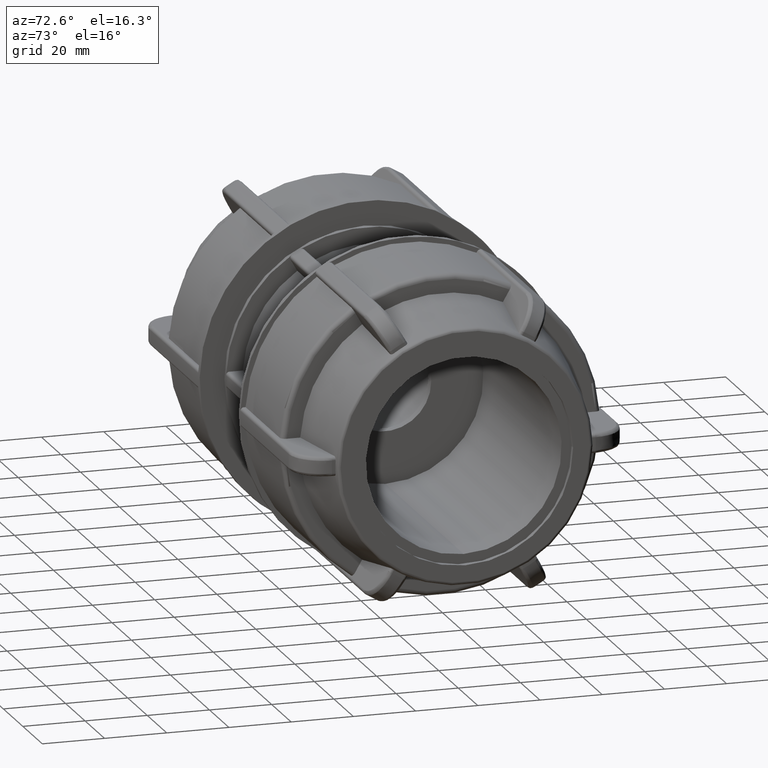
[diagram: clean part render]
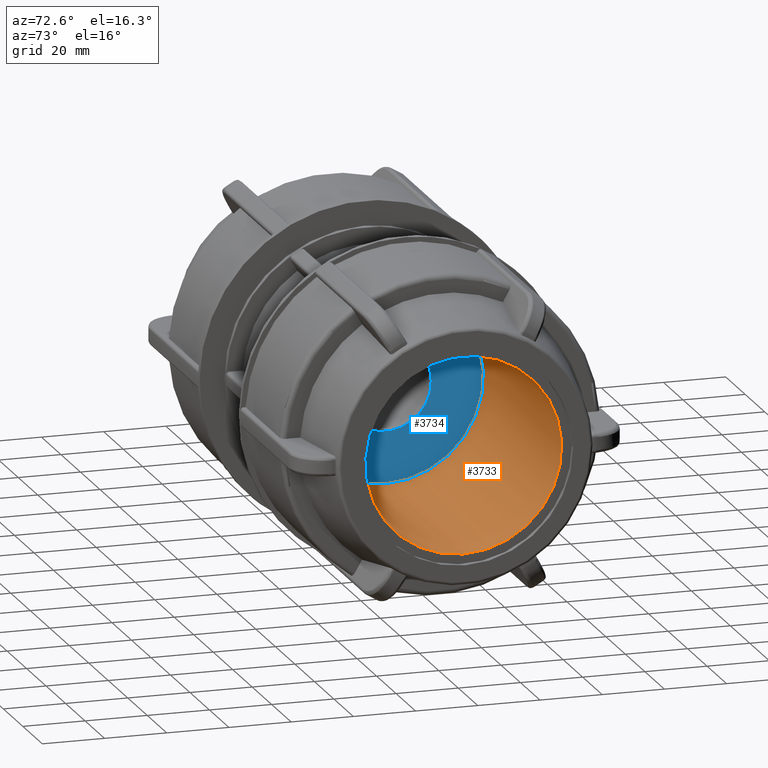
[diagram: same view with the hole feature highlighted: cylindrical wall and planar end face, labeled with their STEP entity ids]
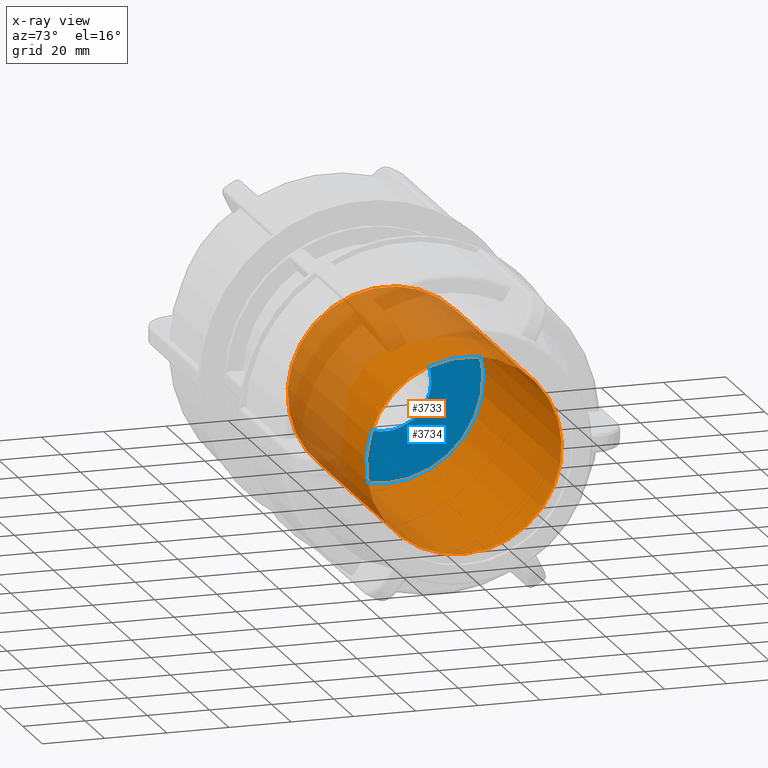
[diagram: x-ray of the same camera — body ghosted, the hole faces saturated]
A machine part, auxiliary view. The highlighted faces form one hole feature of diameter 63 mm: the cylindrical wall (entity #3733, orange) and its adjacent planar end face (entity #3734, blue) — they share a circular edge in the B-rep.
The next image is the same camera in x-ray (body ghosted, the hole faces saturated) — the bore reads through the body.
Wall:
#196=FACE_BOUND('',#587,.T.);
#347=FACE_OUTER_BOUND('',#586,.T.);
#586=EDGE_LOOP('',(#2647));
#587=EDGE_LOOP('',(#2648));
#1299=CIRCLE('',#4018,31.5);
#1300=CIRCLE('',#4019,31.5);
#1558=VERTEX_POINT('',#5706);
#1559=VERTEX_POINT('',#5708);
#1971=EDGE_CURVE('',#1558,#1558,#1299,.T.);
#1972=EDGE_CURVE('',#1559,#1559,#1300,.T.);
#2647=ORIENTED_EDGE('',*,*,#1971,.F.);
#2648=ORIENTED_EDGE('',*,*,#1972,.T.);
#3624=CYLINDRICAL_SURFACE('',#4017,31.5);
#3733=ADVANCED_FACE('',(#347,#196),#3624,.F.);
#4017=AXIS2_PLACEMENT_3D('',#5705,#4613,#4614);
#4018=AXIS2_PLACEMENT_3D('',#5707,#4615,#4616);
#4019=AXIS2_PLACEMENT_3D('',#5709,#4617,#4618);
#4613=DIRECTION('center_axis',(-1.,-3.06161699786838E-16,0.));
#4614=DIRECTION('ref_axis',(0.,0.,1.));
#4615=DIRECTION('center_axis',(-1.,-3.06161699786838E-16,0.));
#4616=DIRECTION('ref_axis',(0.,0.,1.));
#4617=DIRECTION('center_axis',(-1.,-3.06161699786838E-16,0.));
#4618=DIRECTION('ref_axis',(0.,0.,1.));
#5705=CARTESIAN_POINT('Origin',(83.5,2.5564501932201E-14,0.));
#5706=CARTESIAN_POINT('',(81.83,2.11955744762428E-14,-31.5));
#5707=CARTESIAN_POINT('Origin',(81.83,2.5053211893557E-14,0.));
#5708=CARTESIAN_POINT('',(1.5,4.31687996699441E-15,-31.5));
#5709=CARTESIAN_POINT('Origin',(1.5,4.59242549680245E-16,0.));
End face:
#197=FACE_BOUND('',#589,.T.);
#236=PLANE('',#4020);
#348=FACE_OUTER_BOUND('',#588,.T.);
#588=EDGE_LOOP('',(#2649));
#589=EDGE_LOOP('',(#2650));
#1300=CIRCLE('',#4019,31.5);
#1301=CIRCLE('',#4021,14.72);
#1559=VERTEX_POINT('',#5708);
#1560=VERTEX_POINT('',#5711);
#1972=EDGE_CURVE('',#1559,#1559,#1300,.T.);
#1973=EDGE_CURVE('',#1560,#1560,#1301,.T.);
#2649=ORIENTED_EDGE('',*,*,#1972,.F.);
#2650=ORIENTED_EDGE('',*,*,#1973,.F.);
#3734=ADVANCED_FACE('',(#348,#197),#236,.F.);
#4019=AXIS2_PLACEMENT_3D('',#5709,#4617,#4618);
#4020=AXIS2_PLACEMENT_3D('',#5710,#4619,#4620);
#4021=AXIS2_PLACEMENT_3D('',#5712,#4621,#4622);
#4617=DIRECTION('center_axis',(-1.,-3.06161699786838E-16,0.));
#4618=DIRECTION('ref_axis',(0.,0.,1.));
#4619=DIRECTION('center_axis',(-1.,-3.06161699786838E-16,0.));
#4620=DIRECTION('ref_axis',(0.,0.,1.));
#4621=DIRECTION('center_axis',(1.,3.06161699786838E-16,0.));
#4622=DIRECTION('ref_axis',(-4.64848907677115E-16,1.,0.));
#5708=CARTESIAN_POINT('',(1.5,4.31687996699441E-15,-31.5));
#5709=CARTESIAN_POINT('Origin',(1.5,4.59242549680245E-16,0.));
#5710=CARTESIAN_POINT('Origin',(1.5,1.71240318586515E-15,2.20121247197221E-15));
#5711=CARTESIAN_POINT('',(1.50000000000001,-14.72,-1.8026800883449E-15));
#5712=CARTESIAN_POINT('Origin',(1.5,4.59242549680257E-16,0.));